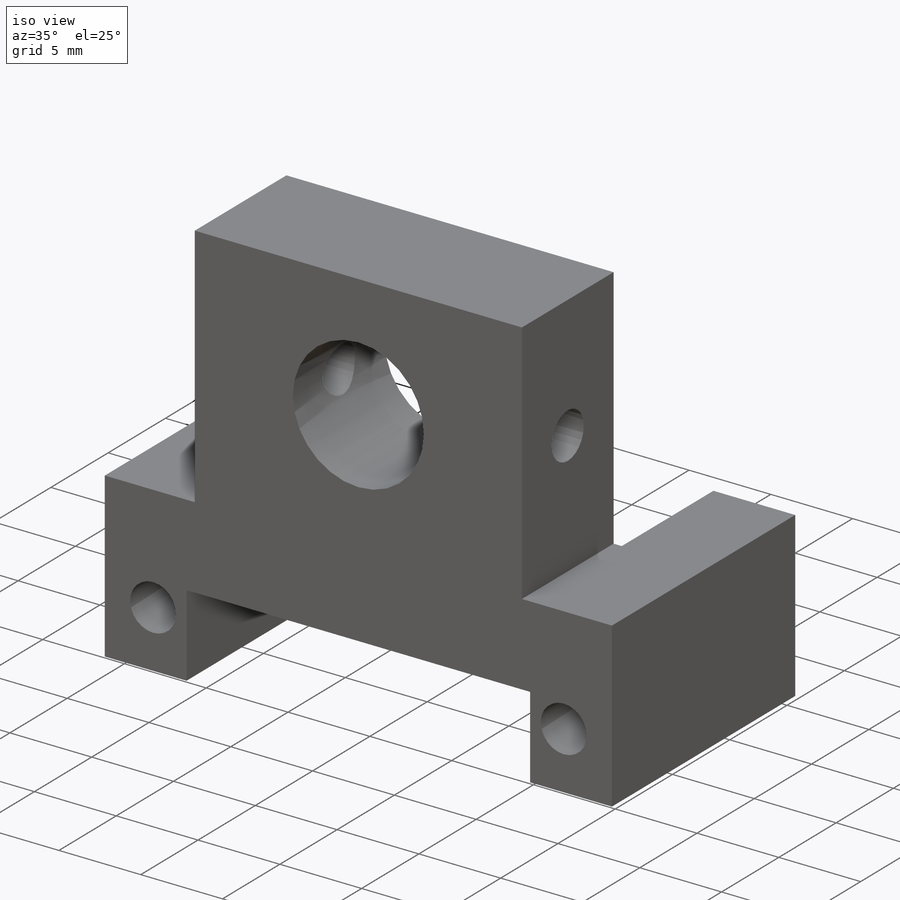
[diagram: iso view]
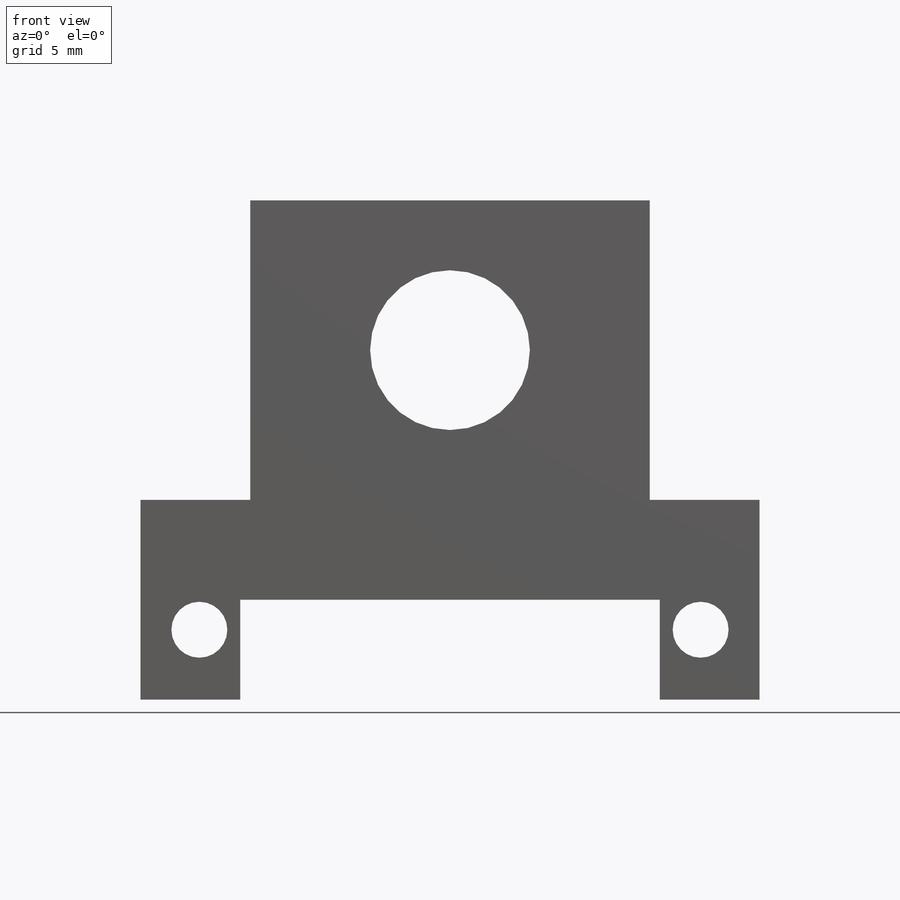
[diagram: front view]
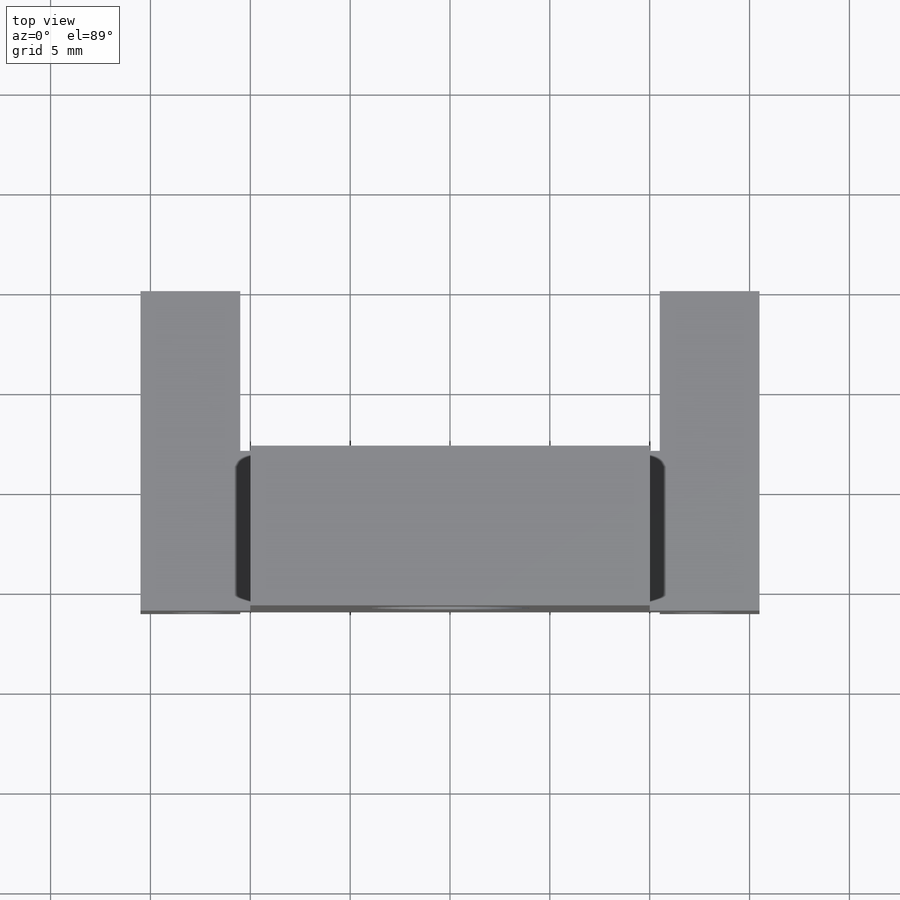
[diagram: top view]
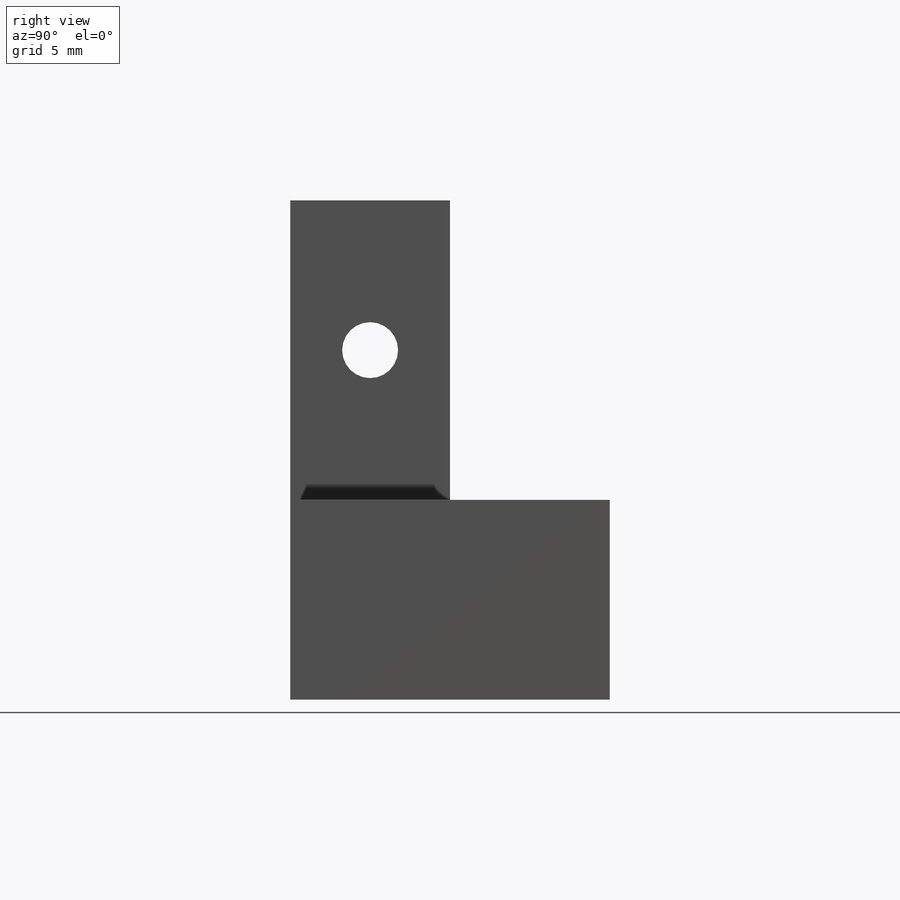
[diagram: right view]
SOLIDWORKS PART (.sldprt)
format: sldprt  version: not decoded by parser v0  size: 208,896 bytes
history: native  units: mm
features: sketch x5, plane x3, cut_extrude x3, extrude x2, material x1 (+10 scaffold rows collapsed)
feature tree (24):
  scaffold x10  (default folders/planes/origin — collapsed)
  material  "Matériau <non spécifié>"
  plane  "Plan de face"
  plane  "Plan de dessus"
  plane  "Plan de droite"
  sketch  "Esquisse1"  dims[c1.D3=~2.024923mm c1.D5=1.7mm c1.D1=21.0mm c1.D2=10.0mm c2.D3=12.55mm c2.D4=1.5mm c2.D5=5.0mm c2.D6=10.0mm]
  extrude  "Boss.-Extru.1"  Depth=16mm
  sketch  "Esquisse2"  dims[D1=10.0mm D2=16.0mm]
  extrude  "Boss.-Extru.2"  Depth=15mm
  sketch  "Esquisse3"  dims[D1=7.5mm]
  cut_extrude  "Enlèv. mat.-Extru.1"  Depth=15mm
  sketch  "Esquisse4"
  cut_extrude  "Enlèv. mat.-Extru.2"  Depth=21mm
  sketch  "Esquisse5"  dims[D1=7.5mm]
  cut_extrude  "Enlèv. mat.-Extru.3"  Depth=21mm
decode coverage: 9 of 10 modeling features carry decoded parameters
note: ~ marks probable driven/reference dimensions
note: suppression state not decoded; provenance and decode notes live in map.json
